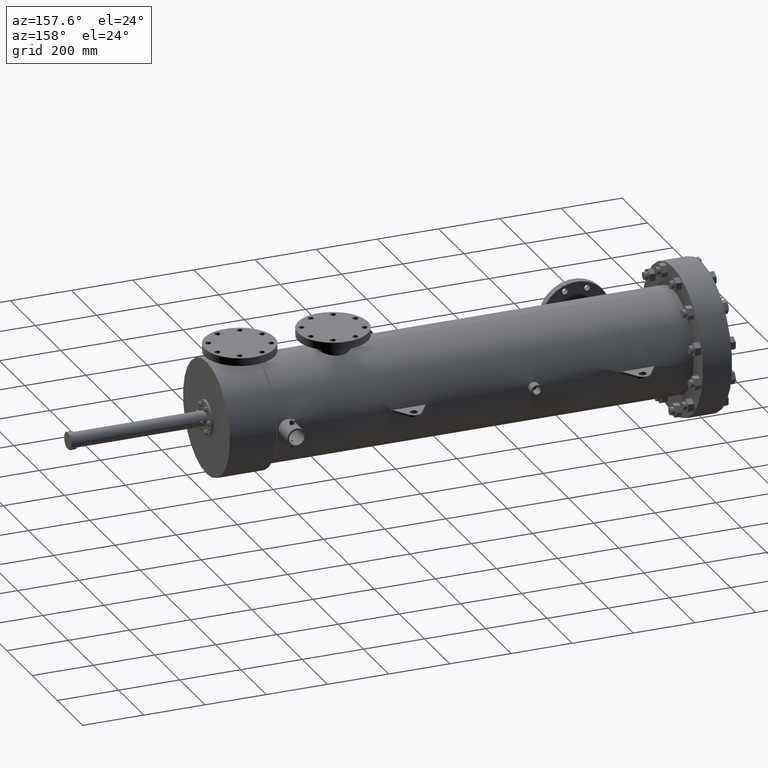
[diagram: clean part render]
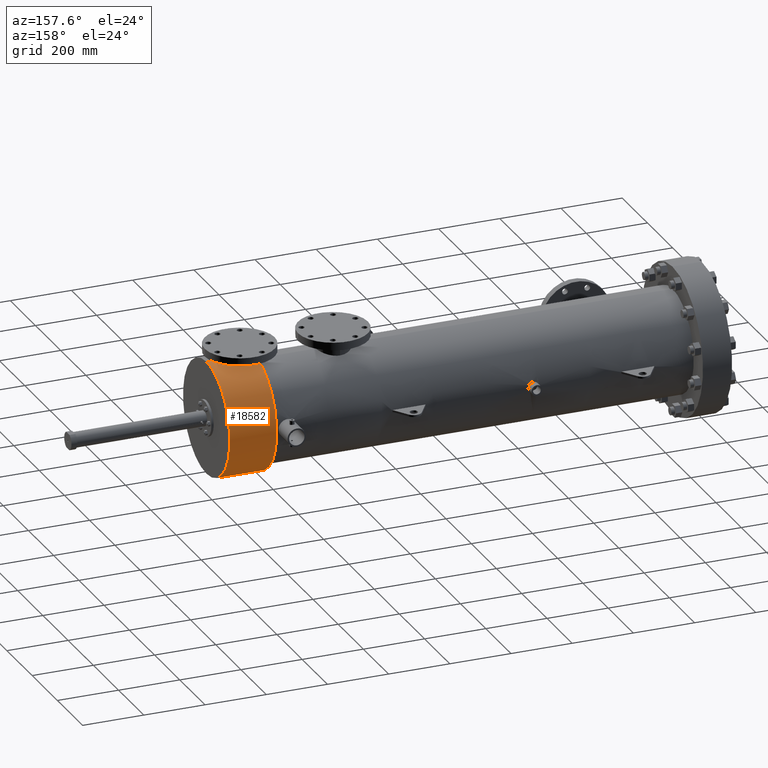
[diagram: same view with one face highlighted and labeled with its STEP entity id]
A machine part, auxiliary view. The second image highlights one B-rep face of the part: STEP entity #18582.
In plain terms, the highlighted cylindrical surface (partial cylindrical patch) has radius 185.179 mm, axis along (-1, -0, -0).
Its self-contained STEP definition (entity closure, byte-faithful):
#268 = CARTESIAN_POINT ( 'NONE',  ( -3.430000000000000160, 3.586048259191783566E-14, -7.290496113956197455 ) ) ;
#284 = CARTESIAN_POINT ( 'NONE',  ( 61.35030076413057998, 1.069459580406093124, 7.211700678599779479 ) ) ;
#428 = CARTESIAN_POINT ( 'NONE',  ( 59.72081507568415049, 2.178868070754290898, 6.957292906381878694 ) ) ;
#499 = CARTESIAN_POINT ( 'NONE',  ( 61.62785039370077556, 0.07193404060239733111, 7.290496113956197455 ) ) ;
#505 = VERTEX_POINT ( 'NONE', #17327 ) ;
#552 = DIRECTION ( 'NONE',  ( 0.0000000000000000000, 0.0000000000000000000, 1.000000000000000000 ) ) ;
#574 = CARTESIAN_POINT ( 'NONE',  ( 60.77036462195054867, 1.742811640127682526, 7.079274752796693271 ) ) ;
#1400 = CARTESIAN_POINT ( 'NONE',  ( -3.430000000000000160, 3.496765431890256920E-14, 7.290496113956197455 ) ) ;
#1725 = DIRECTION ( 'NONE',  ( 0.0000000000000000000, 0.0000000000000000000, 1.000000000000000000 ) ) ;
#1852 = DIRECTION ( 'NONE',  ( 0.0000000000000000000, 0.0000000000000000000, 1.000000000000000000 ) ) ;
#2015 = CARTESIAN_POINT ( 'NONE',  ( 59.57567449025412287, 2.192381482161283923, 6.953042539034907321 ) ) ;
#2093 = CARTESIAN_POINT ( 'NONE',  ( 61.60920550763926684, 0.2879213822916324994, 7.284897727271316015 ) ) ;
#2249 = CARTESIAN_POINT ( 'NONE',  ( 59.50322000439562942, 2.195962554876357054, 6.951912367869265807 ) ) ;
#2904 = FACE_OUTER_BOUND ( 'NONE', #3689, .T. ) ;
#2915 = EDGE_CURVE ( 'NONE', #19163, #505, #7856, .T. ) ;
#3118 = VERTEX_POINT ( 'NONE', #12547 ) ;
#3638 = VERTEX_POINT ( 'NONE', #19102 ) ;
#3680 = CARTESIAN_POINT ( 'NONE',  ( 59.00789878956540946, 2.157432757528553680, 6.963996477736457358 ) ) ;
#3689 = EDGE_LOOP ( 'NONE', ( #9425, #7261, #8886, #3796, #12287, #17272 ) ) ;
#3752 = CARTESIAN_POINT ( 'NONE',  ( 59.79232325554572469, 2.168127392930011332, 6.960659200927007184 ) ) ;
#3796 = ORIENTED_EDGE ( 'NONE', *, *, #15053, .T. ) ;
#3895 = CARTESIAN_POINT ( 'NONE',  ( 61.29541552279145833, 1.162496479913924130, 7.197284754401986007 ) ) ;
#5128 = CARTESIAN_POINT ( 'NONE',  ( 58.19027351256003300, 1.813441252728764219, 7.061398521264332651 ) ) ;
#5201 = CARTESIAN_POINT ( 'NONE',  ( 57.95719041473498834, 1.631298824457241725, 7.105862618033783384 ) ) ;
#5275 = CARTESIAN_POINT ( 'NONE',  ( 58.05414644129029256, 1.712366974152883081, 7.086600340558212530 ) ) ;
#5349 = CARTESIAN_POINT ( 'NONE',  ( 58.29727681865774969, 1.883640721080244163, 7.043122168747814271 ) ) ;
#5487 = CARTESIAN_POINT ( 'NONE',  ( 61.40153695137514234, 0.9738408677056280549, 7.225449127141545524 ) ) ;
#5558 = CARTESIAN_POINT ( 'NONE',  ( 59.46707134389313154, 2.196850393700786608, 6.951631602387116082 ) ) ;
#5647 = CARTESIAN_POINT ( 'NONE',  ( 61.55664937760735000, 0.5733575432770127156, 7.269307358044101441 ) ) ;
#6241 = VERTEX_POINT ( 'NONE', #18283 ) ;
#6789 = CARTESIAN_POINT ( 'NONE',  ( 57.89589835296995091, 1.573755035748194642, 7.118885094019835158 ) ) ;
#6938 = CARTESIAN_POINT ( 'NONE',  ( 58.15533145448792851, 1.789026626965714906, 7.067630075590954242 ) ) ;
#7008 = CARTESIAN_POINT ( 'NONE',  ( 58.59926798119000324, 2.035083005371657539, 7.000763296193030172 ) ) ;
#7148 = CARTESIAN_POINT ( 'NONE',  ( 60.71304754359861988, 1.785382388632047457, 7.068622492984081518 ) ) ;
#7222 = CARTESIAN_POINT ( 'NONE',  ( 61.43230596353927098, 0.9088772887161076230, 7.233927813121648676 ) ) ;
#7261 = ORIENTED_EDGE ( 'NONE', *, *, #16990, .T. ) ;
#7437 = CARTESIAN_POINT ( 'NONE',  ( 61.51474649598383593, 0.7104079997664477508, 7.257024034453245065 ) ) ;
#7856 = CIRCLE ( 'NONE', #18944, 7.290496113956197455 ) ;
#8428 = CARTESIAN_POINT ( 'NONE',  ( 58.88252291951129536, 2.127389243911558481, 6.973204597909414382 ) ) ;
#8750 = CARTESIAN_POINT ( 'NONE',  ( 58.82048485004484206, 2.110421471239848579, 6.978359106964757252 ) ) ;
#8886 = ORIENTED_EDGE ( 'NONE', *, *, #2915, .F. ) ;
#9036 = CARTESIAN_POINT ( 'NONE',  ( 60.40666322891965478, 1.968637252026696371, 7.019690851503134432 ) ) ;
#9114 = CARTESIAN_POINT ( 'NONE',  ( 61.59846517153684431, 0.3599620619808198696, 7.281693548421136697 ) ) ;
#9126 = CARTESIAN_POINT ( 'NONE',  ( 59.09192135846535621, 2.172189224358505477, 6.959384615736882829 ) ) ;
#9132 = CYLINDRICAL_SURFACE ( 'NONE', #21699, 7.290496113956197455 ) ;
#9425 = ORIENTED_EDGE ( 'NONE', *, *, #21336, .T. ) ;
#9876 = LINE ( 'NONE', #1400, #15012 ) ;
#10503 = CARTESIAN_POINT ( 'NONE',  ( 58.84107225246948047, 2.116269679323875330, 6.976587274863692123 ) ) ;
#10644 = CARTESIAN_POINT ( 'NONE',  ( 61.17680537010063091, 1.341171408626419037, 7.167084617146510794 ) ) ;
#10721 = CARTESIAN_POINT ( 'NONE',  ( 60.30838428278099883, 2.014362749861578372, 7.006702910603922696 ) ) ;
#10802 = CARTESIAN_POINT ( 'NONE',  ( 59.61207532555096833, 2.189678099097142283, 6.953895144217972835 ) ) ;
#10812 = CARTESIAN_POINT ( 'NONE',  ( 58.90341682251904132, 2.132667071056560282, 6.971591754595208634 ) ) ;
#10951 = CARTESIAN_POINT ( 'NONE',  ( 59.43100000000000449, 2.196850393700786164, 6.951631602387116970 ) ) ;
#11010 = DIRECTION ( 'NONE',  ( -1.000000000000000000, -0.0000000000000000000, -0.0000000000000000000 ) ) ;
#11306 = B_SPLINE_CURVE_WITH_KNOTS ( 'NONE', 3,
 ( #17193, #15468, #17111, #6789, #5201, #5275, #17275, #6938, #5128, #5349, #19109, #19026, #7008, #20770, #12163, #8750, #10503, #8428, #10812, #3680, #9126, #21145, #15770, #21223 ),
 .UNSPECIFIED., .F., .F.,
 ( 4, 2, 2, 2, 2, 2, 2, 2, 2, 2, 2, 4 ),
 ( 0.0000000000000000000, 0.006482575153541155454, 0.01296515030708231091, 0.01620643788385289427, 0.01944772546062347937, 0.02593030061416462181, 0.03241287576770576773, 0.03565416334447665120, 0.03727480713286209640, 0.03889545092124754161, 0.04537802607478867017, 0.05186060122832979874 ),
 .UNSPECIFIED. ) ;
#11430 = EDGE_CURVE ( 'NONE', #3118, #3638, #9876, .T. ) ;
#11757 = B_SPLINE_CURVE_WITH_KNOTS ( 'NONE', 3,
 ( #10951, #5558, #2249, #2015, #10802, #428, #3752, #16046, #14263, #10721, #17797, #9036, #12590, #19331, #21137, #7148, #574, #17566, #20984, #21058, #19259, #17721, #10644, #12521, #3895, #15828, #284, #5487, #7222, #7437, #5647, #19482, #9114, #2093, #12673, #21214, #499, #14338 ),
 .UNSPECIFIED., .F., .F.,
 ( 4, 2, 2, 2, 2, 2, 2, 2, 2, 2, 2, 2, 2, 2, 2, 2, 2, 2, 4 ),
 ( 0.05186060122832979874, 0.05460172653551122190, 0.05734285184269265201, 0.06282510245705549834, 0.07378960368578184326, 0.07653072899296342602, 0.07927185430014500878, 0.08475410491450818817, 0.09023635552887135369, 0.09297748083605295033, 0.09571860614323454697, 0.1066831073719622380, 0.1094242326791440845, 0.1121653579863259032, 0.1176476086006895683, 0.1286121098294168708, 0.1313532351365986617, 0.1340943604437804526, 0.1395766110581439789 ),
 .UNSPECIFIED. ) ;
#11903 = DIRECTION ( 'NONE',  ( -1.000000000000000000, -0.0000000000000000000, -0.0000000000000000000 ) ) ;
#12163 = CARTESIAN_POINT ( 'NONE',  ( 58.75912948737106944, 2.092024186220049042, 6.983905246318211191 ) ) ;
#12215 = DIRECTION ( 'NONE',  ( -1.000000000000000000, -0.0000000000000000000, -0.0000000000000000000 ) ) ;
#12287 = ORIENTED_EDGE ( 'NONE', *, *, #18293, .T. ) ;
#12521 = CARTESIAN_POINT ( 'NONE',  ( 61.27621244143675483, 1.192736052570156469, 7.192330714957783755 ) ) ;
#12547 = CARTESIAN_POINT ( 'NONE',  ( 63.71151093333343596, 3.496765431890256920E-14, 7.290496113956197455 ) ) ;
#12590 = CARTESIAN_POINT ( 'NONE',  ( 60.43871947470466921, 1.952418148521423591, 7.024222803713814578 ) ) ;
#12673 = CARTESIAN_POINT ( 'NONE',  ( 61.61365932998964468, 0.2519101264678083596, 7.286231685994843055 ) ) ;
#14263 = CARTESIAN_POINT ( 'NONE',  ( 60.14137806361313210, 2.083855970407710867, 6.986574835236750936 ) ) ;
#14338 = CARTESIAN_POINT ( 'NONE',  ( 61.62785039370078977, 3.496759956578001989E-14, 7.290496113956197455 ) ) ;
#15012 = VECTOR ( 'NONE', #16806, 39.37007874015748143 ) ;
#15053 = EDGE_CURVE ( 'NONE', #19163, #17148, #11306, .T. ) ;
#15320 = LINE ( 'NONE', #268, #22351 ) ;
#15468 = CARTESIAN_POINT ( 'NONE',  ( 57.72526682753984062, 1.387052026631198087, 7.157669954072114038 ) ) ;
#15770 = CARTESIAN_POINT ( 'NONE',  ( 59.34569372193101344, 2.196850393700785720, 6.951631602387115194 ) ) ;
#15828 = CARTESIAN_POINT ( 'NONE',  ( 61.33244360652338401, 1.100888513269796753, 7.206965407375712118 ) ) ;
#16046 = CARTESIAN_POINT ( 'NONE',  ( 60.00401068578556618, 2.125682794998410508, 6.973785450234985639 ) ) ;
#16806 = DIRECTION ( 'NONE',  ( -1.000000000000000000, -0.0000000000000000000, -0.0000000000000000000 ) ) ;
#16990 = EDGE_CURVE ( 'NONE', #6241, #505, #15320, .T. ) ;
#17009 = CARTESIAN_POINT ( 'NONE',  ( 57.67402133819589949, 1.318778842061235634, 7.170227050334050389 ) ) ;
#17111 = CARTESIAN_POINT ( 'NONE',  ( 57.77993695083182502, 1.451631078107873618, 7.144788107947777966 ) ) ;
#17148 = VERTEX_POINT ( 'NONE', #17994 ) ;
#17193 = CARTESIAN_POINT ( 'NONE',  ( 57.67402133819589949, 1.318778842061235634, 7.170227050334050389 ) ) ;
#17272 = ORIENTED_EDGE ( 'NONE', *, *, #11430, .F. ) ;
#17275 = CARTESIAN_POINT ( 'NONE',  ( 58.08730365835814524, 1.738512770001843011, 7.080224890914881719 ) ) ;
#17327 = CARTESIAN_POINT ( 'NONE',  ( 57.67402133819589949, 3.586048259191783566E-14, -7.290496113956197455 ) ) ;
#17364 = DIRECTION ( 'NONE',  ( -1.000000000000000000, -0.0000000000000000000, -0.0000000000000000000 ) ) ;
#17552 = CARTESIAN_POINT ( 'NONE',  ( 57.67402133819589949, 3.496765431890256920E-14, 0.0000000000000000000 ) ) ;
#17566 = CARTESIAN_POINT ( 'NONE',  ( 60.85343796744710687, 1.674546645772132081, 7.095616575145426985 ) ) ;
#17721 = CARTESIAN_POINT ( 'NONE',  ( 61.08653159581883330, 1.451162273400882885, 7.145363116775613754 ) ) ;
#17797 = CARTESIAN_POINT ( 'NONE',  ( 60.34154237904481022, 1.999590943742378668, 7.010936338211001484 ) ) ;
#17994 = CARTESIAN_POINT ( 'NONE',  ( 59.43100000000000449, 2.196850393700786164, 6.951631602387116970 ) ) ;
#18066 = CARTESIAN_POINT ( 'NONE',  ( 63.71151093333343596, 3.496765431890256920E-14, 0.0000000000000000000 ) ) ;
#18283 = CARTESIAN_POINT ( 'NONE',  ( 63.71151093333343596, 3.586048259191783566E-14, -7.290496113956197455 ) ) ;
#18293 = EDGE_CURVE ( 'NONE', #17148, #3638, #11757, .T. ) ;
#18582 = ADVANCED_FACE ( 'NONE', ( #2904 ), #9132, .T. ) ;
#18944 = AXIS2_PLACEMENT_3D ( 'NONE', #17552, #12215, #1852 ) ;
#19026 = CARTESIAN_POINT ( 'NONE',  ( 58.52170863577272542, 2.001617898638780702, 7.010449696737197200 ) ) ;
#19102 = CARTESIAN_POINT ( 'NONE',  ( 61.62785039370078977, 3.496759956578001989E-14, 7.290496113956197455 ) ) ;
#19109 = CARTESIAN_POINT ( 'NONE',  ( 58.37071317173732155, 1.925896372866948925, 7.031628710591292908 ) ) ;
#19127 = CARTESIAN_POINT ( 'NONE',  ( -3.430000000000000160, 3.496765431890256920E-14, 0.0000000000000000000 ) ) ;
#19163 = VERTEX_POINT ( 'NONE', #17009 ) ;
#19259 = CARTESIAN_POINT ( 'NONE',  ( 60.96003859682716097, 1.577806766995965893, 7.117761686113238007 ) ) ;
#19331 = CARTESIAN_POINT ( 'NONE',  ( 60.53341019794802946, 1.901572366240572354, 7.038223658329879839 ) ) ;
#19437 = CIRCLE ( 'NONE', #21727, 7.290496113956197455 ) ;
#19482 = CARTESIAN_POINT ( 'NONE',  ( 61.59219386869461488, 0.3958579230744921906, 7.279827935072235690 ) ) ;
#20770 = CARTESIAN_POINT ( 'NONE',  ( 58.71876801182152406, 2.078623241886169204, 6.987910131149197568 ) ) ;
#20984 = CARTESIAN_POINT ( 'NONE',  ( 60.88066388958390007, 1.651037745895944875, 7.101128469317342429 ) ) ;
#21058 = CARTESIAN_POINT ( 'NONE',  ( 60.93405083172579850, 1.602588290355657197, 7.112219199921874235 ) ) ;
#21137 = CARTESIAN_POINT ( 'NONE',  ( 60.59457032052730341, 1.864762796409421552, 7.048097185417157462 ) ) ;
#21145 = CARTESIAN_POINT ( 'NONE',  ( 59.26081879603878377, 2.191898425881659396, 6.953202251250273136 ) ) ;
#21214 = CARTESIAN_POINT ( 'NONE',  ( 61.62432596494419812, 0.1439031098448982360, 7.289431713610789565 ) ) ;
#21223 = CARTESIAN_POINT ( 'NONE',  ( 59.43100000000000449, 2.196850393700786164, 6.951631602387116970 ) ) ;
#21336 = EDGE_CURVE ( 'NONE', #3118, #6241, #19437, .T. ) ;
#21699 = AXIS2_PLACEMENT_3D ( 'NONE', #19127, #17364, #1725 ) ;
#21727 = AXIS2_PLACEMENT_3D ( 'NONE', #18066, #11010, #552 ) ;
#22351 = VECTOR ( 'NONE', #11903, 39.37007874015748143 ) ;